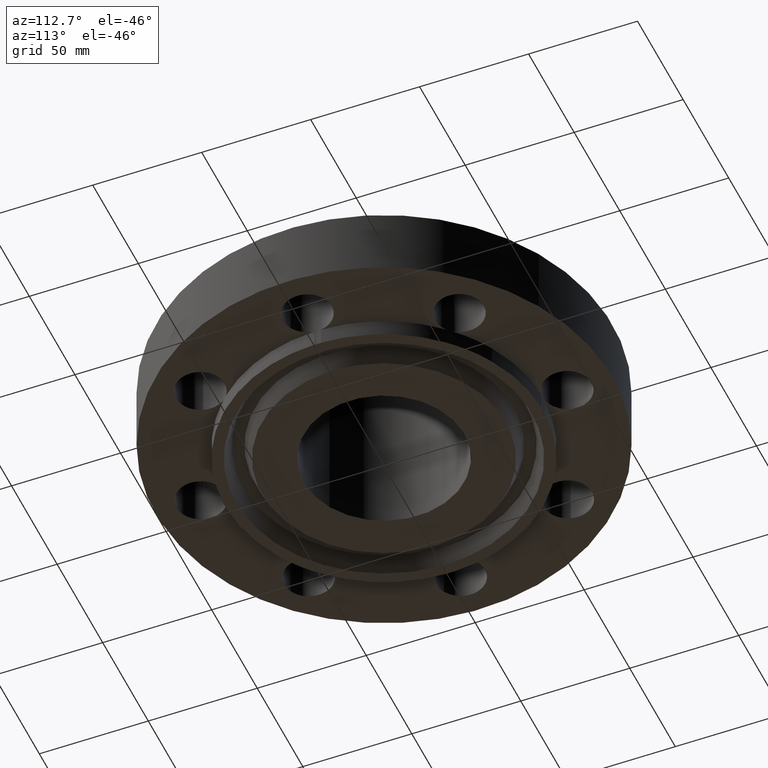
[diagram: clean part render]
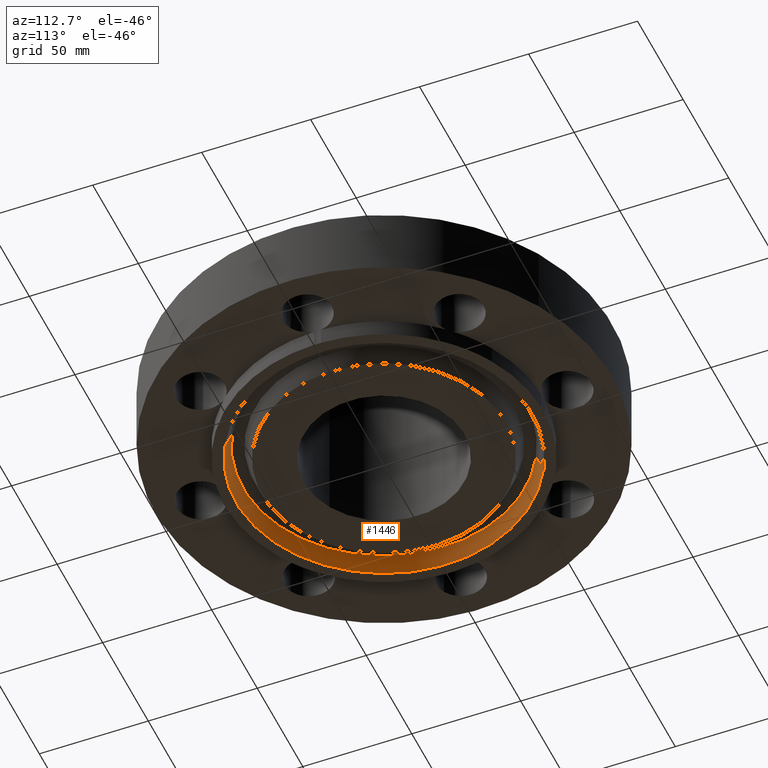
[diagram: same view with one face highlighted and labeled with its STEP entity id]
A machine part, auxiliary view. The second image highlights one B-rep face of the part: STEP entity #1446.
In plain terms, the highlighted conical surface has half-angle 23 deg.
Its self-contained STEP definition (entity closure, byte-faithful):
#1345=AXIS2_PLACEMENT_3D('Circle Axis2P3D',#1343,#1344,$) ;
#1392=AXIS2_PLACEMENT_3D('Circle Axis2P3D',#1390,#1391,$) ;
#1428=AXIS2_PLACEMENT_3D('Cone Axis2P3D',#1425,#1426,#1427) ;
#1343=CARTESIAN_POINT('Axis2P3D Location',(-2.79741234551E-016,0.,-0.313000000001)) ;
#1347=CARTESIAN_POINT('Vertex',(1.28102503916,-2.34490060538,-0.313000000001)) ;
#1349=CARTESIAN_POINT('Vertex',(-1.28102503916,2.34490060538,-0.313000000001)) ;
#1390=CARTESIAN_POINT('Axis2P3D Location',(0.,0.,-0.0188873350169)) ;
#1394=CARTESIAN_POINT('Vertex',(-1.22117191556,2.23534019754,-0.0188873350169)) ;
#1396=CARTESIAN_POINT('Vertex',(1.22117191556,-2.23534019754,-0.0188873350169)) ;
#1425=CARTESIAN_POINT('Axis2P3D Location',(0.,0.,-0.0188873350169)) ;
#1430=CARTESIAN_POINT('Line Origine',(-1.25109847736,2.29012040146,-0.165943667509)) ;
#1435=CARTESIAN_POINT('Line Origine',(1.25109847736,-2.29012040146,-0.165943667509)) ;
#1344=DIRECTION('Axis2P3D Direction',(0.,0.,-0.0393700787402)) ;
#1391=DIRECTION('Axis2P3D Direction',(0.,0.,0.0393700787402)) ;
#1426=DIRECTION('Axis2P3D Direction',(-0.,-0.,-0.0393700787402)) ;
#1427=DIRECTION('Axis2P3D XDirection',(-0.0188750212049,0.0345504945626,0.)) ;
#1431=DIRECTION('Vector Direction',(-0.00737505833565,0.0134999537303,-0.0362403485611)) ;
#1436=DIRECTION('Vector Direction',(0.00737505833565,-0.0134999537303,-0.0362403485611)) ;
#1432=VECTOR('Line Direction',#1431,0.0393700787402) ;
#1437=VECTOR('Line Direction',#1436,0.0393700787402) ;
#1441=ORIENTED_EDGE('',*,*,#1351,.T.) ;
#1442=ORIENTED_EDGE('',*,*,#1434,.T.) ;
#1443=ORIENTED_EDGE('',*,*,#1398,.T.) ;
#1444=ORIENTED_EDGE('',*,*,#1439,.F.) ;
#1446=ADVANCED_FACE('PartBody',(#1445),#1429,.F.) ;
#1346=CIRCLE('generated circle',#1345,2.67200000001) ;
#1393=CIRCLE('generated circle',#1392,2.5471565806) ;
#1429=CONICAL_SURFACE('Cone',#1428,2.5471565806,0.401425727959) ;
#1351=EDGE_CURVE('',#1348,#1350,#1346,.T.) ;
#1398=EDGE_CURVE('',#1395,#1397,#1393,.T.) ;
#1434=EDGE_CURVE('',#1350,#1395,#1433,.F.) ;
#1439=EDGE_CURVE('',#1348,#1397,#1438,.F.) ;
#1440=EDGE_LOOP('',(#1441,#1442,#1443,#1444)) ;
#1445=FACE_OUTER_BOUND('',#1440,.T.) ;
#1433=LINE('Line',#1430,#1432) ;
#1438=LINE('Line',#1435,#1437) ;
#1348=VERTEX_POINT('',#1347) ;
#1350=VERTEX_POINT('',#1349) ;
#1395=VERTEX_POINT('',#1394) ;
#1397=VERTEX_POINT('',#1396) ;